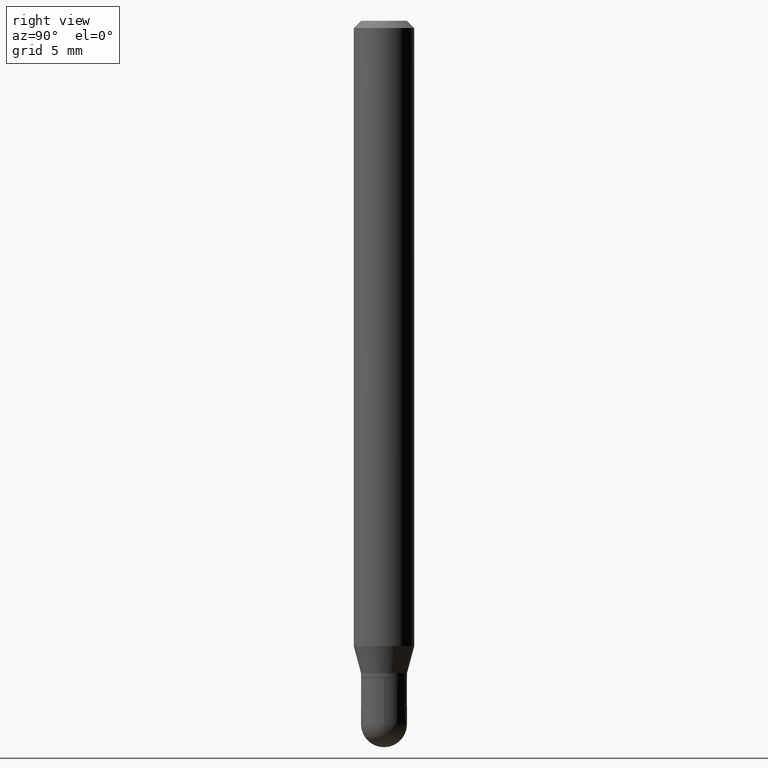
[diagram: clean part render]
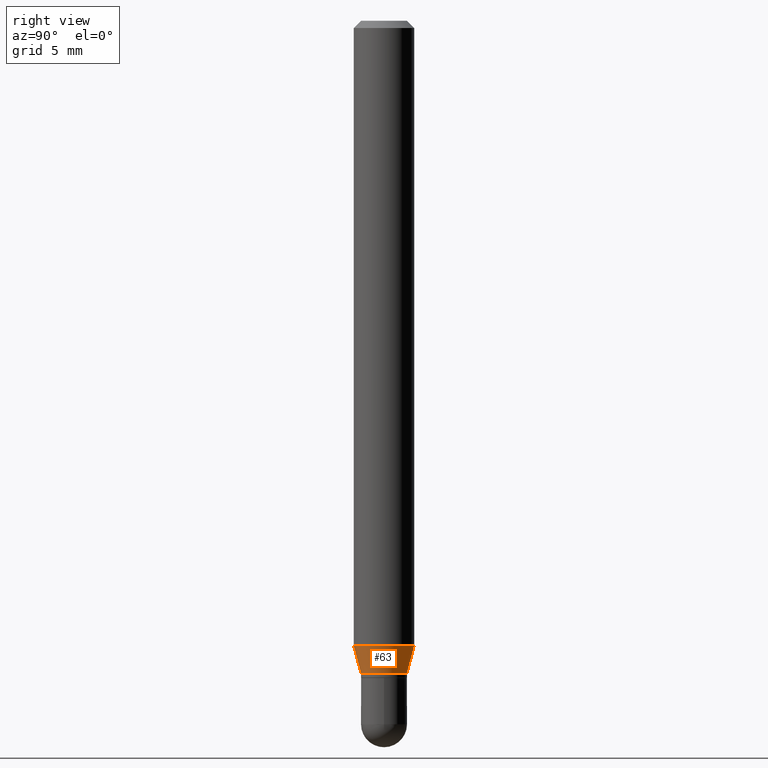
[diagram: same view with one face highlighted and labeled with its STEP entity id]
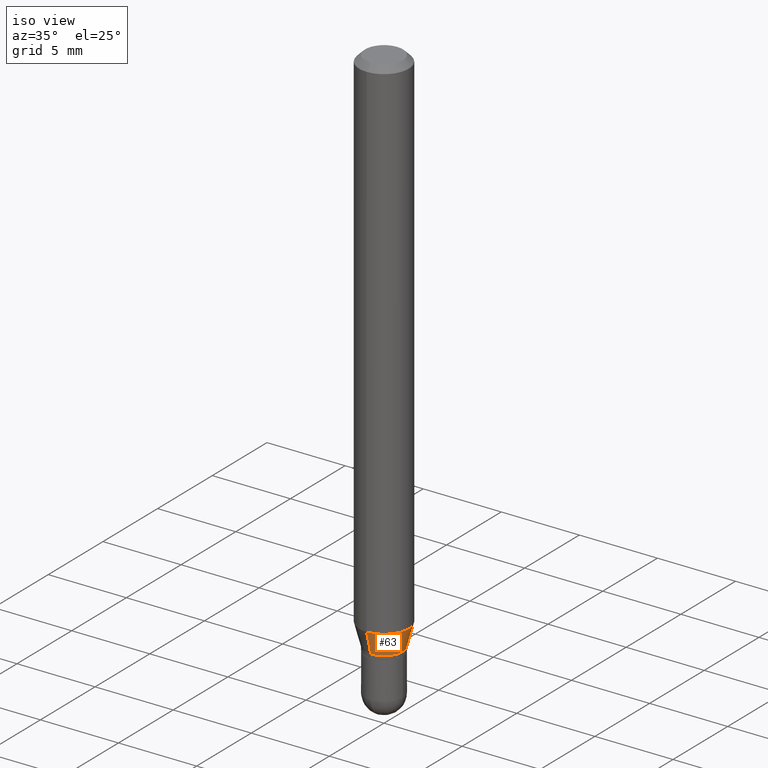
[diagram: same view with one face highlighted and labeled with its STEP entity id]
A machine part, right view. The second image highlights one B-rep face of the part: STEP entity #63.
A second angle (iso view) of the same face is appended — the face is thin or edge-on in the first view.
In plain terms, the highlighted conical surface has half-angle 15 deg.
Its self-contained STEP definition (entity closure, byte-faithful):
#5 = CIRCLE ( 'NONE', #391, 0.06250000000000000000 ) ;
#31 = CARTESIAN_POINT ( 'NONE',  ( -4.364351673553598192E-16, -0.06250000000000446865, -1.291019237886466664 ) ) ;
#35 = VERTEX_POINT ( 'NONE', #119 ) ;
#37 = ORIENTED_EDGE ( 'NONE', *, *, #277, .F. ) ;
#40 = ORIENTED_EDGE ( 'NONE', *, *, #141, .F. ) ;
#47 = LINE ( 'NONE', #198, #323 ) ;
#54 = CONICAL_SURFACE ( 'NONE', #268, 0.04749999999999991729, 0.2617993877991508511 ) ;
#58 = EDGE_CURVE ( 'NONE', #35, #275, #108, .T. ) ;
#63 = ADVANCED_FACE ( 'NONE', ( #126 ), #54, .T. ) ;
#81 = EDGE_CURVE ( 'NONE', #275, #130, #278, .T. ) ;
#108 = CIRCLE ( 'NONE', #286, 0.04749999999999991729 ) ;
#114 = CARTESIAN_POINT ( 'NONE',  ( 3.375077994860798862E-16, 0.04749999999999521966, -1.347000000000000419 ) ) ;
#119 = CARTESIAN_POINT ( 'NONE',  ( -3.316907271900641323E-16, -0.04750000000000462186, -1.346999999999999975 ) ) ;
#126 = FACE_OUTER_BOUND ( 'NONE', #208, .T. ) ;
#130 = VERTEX_POINT ( 'NONE', #209 ) ;
#141 = EDGE_CURVE ( 'NONE', #429, #130, #5, .T. ) ;
#198 = CARTESIAN_POINT ( 'NONE',  ( -3.316907271900641323E-16, -0.04750000000000462186, -1.346999999999999975 ) ) ;
#208 = EDGE_LOOP ( 'NONE', ( #310, #321, #40, #37 ) ) ;
#209 = CARTESIAN_POINT ( 'NONE',  ( 4.440892098500942692E-16, 0.06249999999999551747, -1.291019237886467330 ) ) ;
#224 = CARTESIAN_POINT ( 'NONE',  ( 3.294059071752896027E-29, -4.703007334080737587E-15, -1.347000000000000197 ) ) ;
#238 = DIRECTION ( 'NONE',  ( 1.839019923739603865E-15, 0.2588190451025254579, 0.9659258262890669799 ) ) ;
#264 = CARTESIAN_POINT ( 'NONE',  ( 3.294059071752896027E-29, -4.703007334080737587E-15, -1.347000000000000197 ) ) ;
#268 = AXIS2_PLACEMENT_3D ( 'NONE', #224, #279, #438 ) ;
#270 = DIRECTION ( 'NONE',  ( -2.445478152748994695E-29, 3.491467954031727558E-15, 1.000000000000000000 ) ) ;
#275 = VERTEX_POINT ( 'NONE', #478 ) ;
#277 = EDGE_CURVE ( 'NONE', #35, #429, #47, .T. ) ;
#278 = LINE ( 'NONE', #114, #300 ) ;
#279 = DIRECTION ( 'NONE',  ( -2.445478152748994695E-29, 3.491467954031727558E-15, 1.000000000000000000 ) ) ;
#286 = AXIS2_PLACEMENT_3D ( 'NONE', #264, #270, #472 ) ;
#300 = VECTOR ( 'NONE', #238, 39.37007874015748854 ) ;
#310 = ORIENTED_EDGE ( 'NONE', *, *, #58, .T. ) ;
#321 = ORIENTED_EDGE ( 'NONE', *, *, #81, .T. ) ;
#323 = VECTOR ( 'NONE', #451, 39.37007874015748854 ) ;
#391 = AXIS2_PLACEMENT_3D ( 'NONE', #492, #455, #446 ) ;
#429 = VERTEX_POINT ( 'NONE', #31 ) ;
#438 = DIRECTION ( 'NONE',  ( -6.982962677686265922E-15, -1.000000000000000000, 5.751258934030037627E-15 ) ) ;
#446 = DIRECTION ( 'NONE',  ( -6.982962677686265922E-15, -1.000000000000000000, 4.370956789862821150E-15 ) ) ;
#451 = DIRECTION ( 'NONE',  ( -1.807323732225333689E-15, -0.2588190451025186856, 0.9659258262890687563 ) ) ;
#455 = DIRECTION ( 'NONE',  ( -2.445478152748994695E-29, 3.491467954031727558E-15, 1.000000000000000000 ) ) ;
#472 = DIRECTION ( 'NONE',  ( -6.982962677686265922E-15, -1.000000000000000000, 5.751258934030037627E-15 ) ) ;
#478 = CARTESIAN_POINT ( 'NONE',  ( 3.907985046680871024E-16, 0.04749999999999521966, -1.347000000000000419 ) ) ;
#492 = CARTESIAN_POINT ( 'NONE',  ( 3.157159341030012166E-29, -4.507552297119063437E-15, -1.291019237886467108 ) ) ;